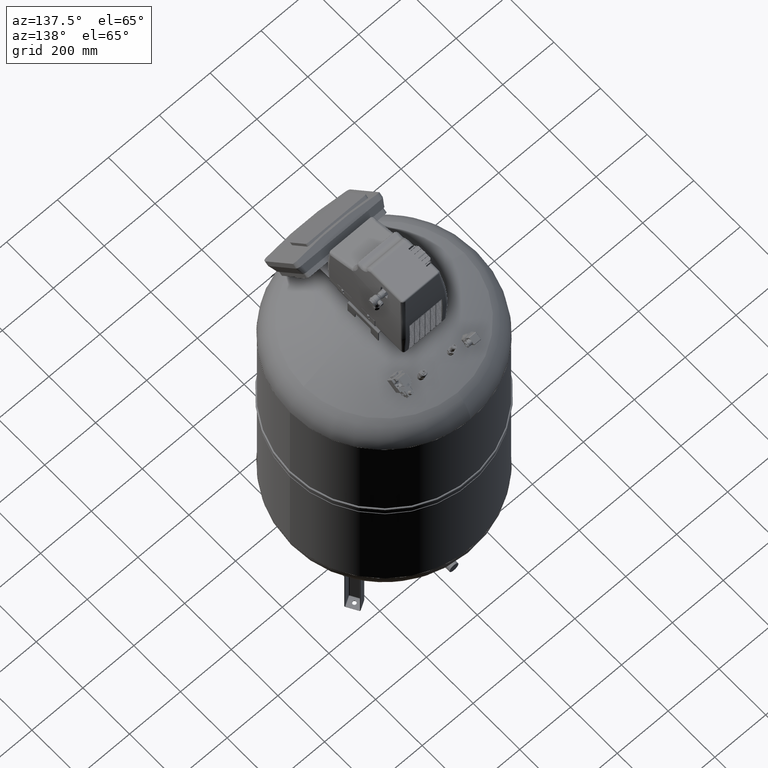
[diagram: clean part render]
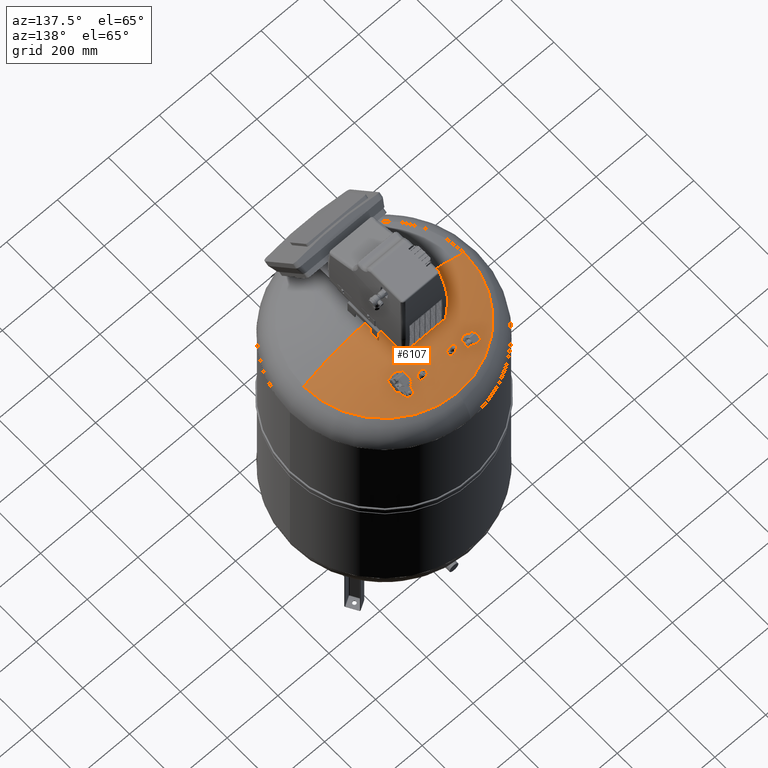
[diagram: same view with one face highlighted and labeled with its STEP entity id]
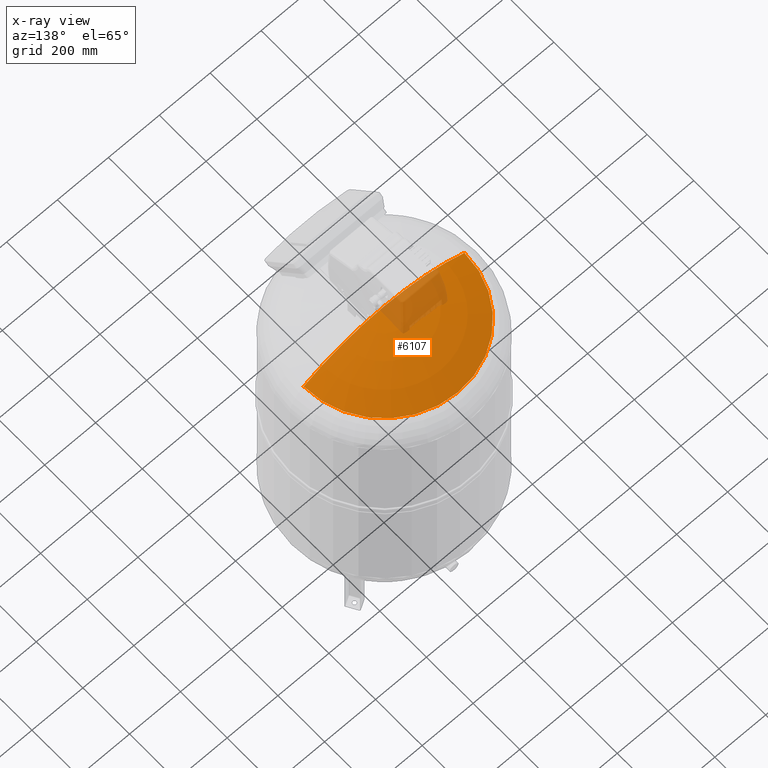
[diagram: x-ray of the same camera — body ghosted, the highlighted face saturated]
A machine part, auxiliary view. The second image highlights one B-rep face of the part: STEP entity #6107.
The next image is the same camera in x-ray: the body ghosted, the highlighted face saturated — about 12% of this face is hidden behind the body in this view.
In plain terms, the highlighted spherical surface has radius 594 mm.
Its self-contained STEP definition (entity closure, byte-faithful):
#6028=CARTESIAN_POINT('',(2.754660E-014,315.93103448275861,1359.0144942749203));
#6029=VERTEX_POINT('',#6028);
#6037=CARTESIAN_POINT('',(315.93103448275861,-1.671377E-014,1359.0144942749205));
#6038=VERTEX_POINT('',#6037);
#6039=CARTESIAN_POINT('',(-1.114251E-014,-1.671377E-014,1359.0144942749205));
#6040=DIRECTION('',(0.0,0.0,-1.0));
#6041=DIRECTION('',(1.0,0.0,0.0));
#6042=AXIS2_PLACEMENT_3D('',#6039,#6040,#6041);
#6043=CIRCLE('',#6042,315.93103448275861);
#6044=EDGE_CURVE('',#6029,#6038,#6043,.T.);
#6061=CARTESIAN_POINT('',(-1.091148E-013,-1.091160E-013,1450.0));
#6062=VERTEX_POINT('',#6061);
#6063=CARTESIAN_POINT('',(-7.274402E-014,-1.091160E-013,856.0));
#6064=DIRECTION('',(0.0,1.0,0.0));
#6065=DIRECTION('',(1.0,0.0,0.0));
#6066=AXIS2_PLACEMENT_3D('',#6063,#6064,#6065);
#6067=CIRCLE('',#6066,594.0);
#6068=EDGE_CURVE('',#6062,#6038,#6067,.T.);
#6070=CARTESIAN_POINT('',(-315.93103448275861,-1.478051E-013,1359.0144942749203));
#6071=VERTEX_POINT('',#6070);
#6072=CARTESIAN_POINT('',(-7.274402E-014,-1.091160E-013,856.0));
#6073=DIRECTION('',(0.0,-1.0,0.0));
#6074=DIRECTION('',(-1.0,0.0,0.0));
#6075=AXIS2_PLACEMENT_3D('',#6072,#6073,#6074);
#6076=CIRCLE('',#6075,594.0);
#6077=EDGE_CURVE('',#6062,#6071,#6076,.T.);
#6090=CARTESIAN_POINT('',(-7.274402E-014,-1.091160E-013,856.0));
#6091=DIRECTION('',(0.0,0.0,1.0));
#6092=DIRECTION('',(1.0,0.0,0.0));
#6093=AXIS2_PLACEMENT_3D('',#6090,#6091,#6092);
#6094=SPHERICAL_SURFACE('',#6093,594.0);
#6095=ORIENTED_EDGE('',*,*,#6068,.T.);
#6096=ORIENTED_EDGE('',*,*,#6044,.F.);
#6097=CARTESIAN_POINT('',(-1.114251E-014,-1.671377E-014,1359.0144942749205));
#6098=DIRECTION('',(0.0,0.0,-1.0));
#6099=DIRECTION('',(1.0,0.0,0.0));
#6100=AXIS2_PLACEMENT_3D('',#6097,#6098,#6099);
#6101=CIRCLE('',#6100,315.93103448275861);
#6102=EDGE_CURVE('',#6071,#6029,#6101,.T.);
#6103=ORIENTED_EDGE('',*,*,#6102,.F.);
#6104=ORIENTED_EDGE('',*,*,#6077,.F.);
#6105=EDGE_LOOP('',(#6095,#6096,#6103,#6104));
#6106=FACE_OUTER_BOUND('',#6105,.T.);
#6107=ADVANCED_FACE('',(#6106),#6094,.T.);